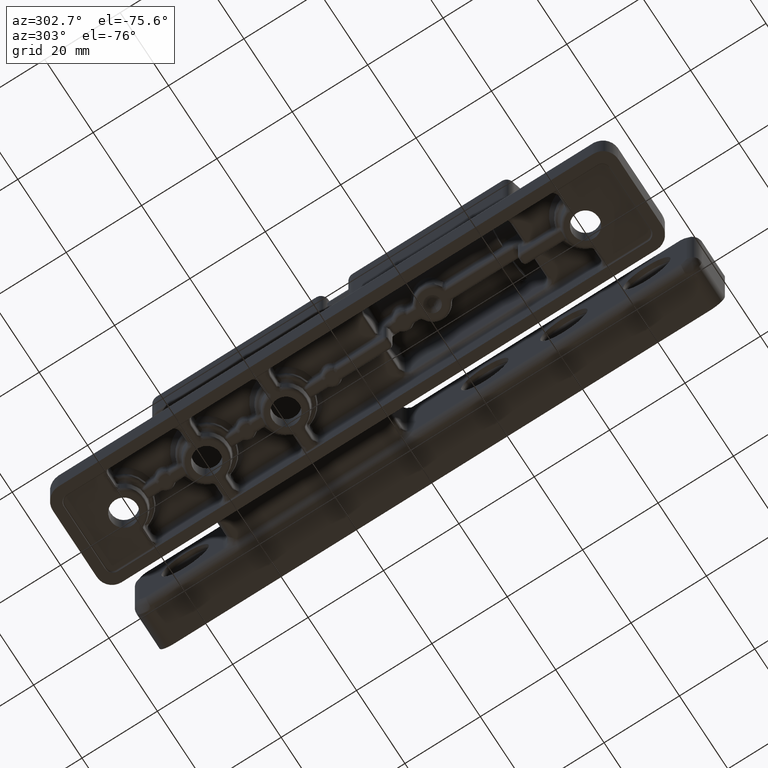
[diagram: clean part render]
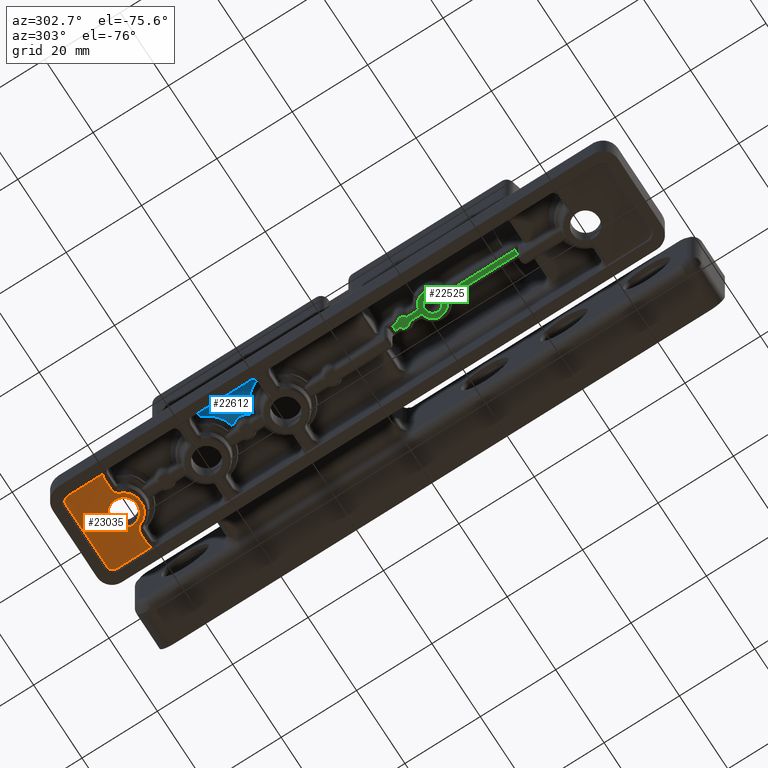
[diagram: same view with three faces highlighted in distinct colors, each labeled with its STEP entity id]
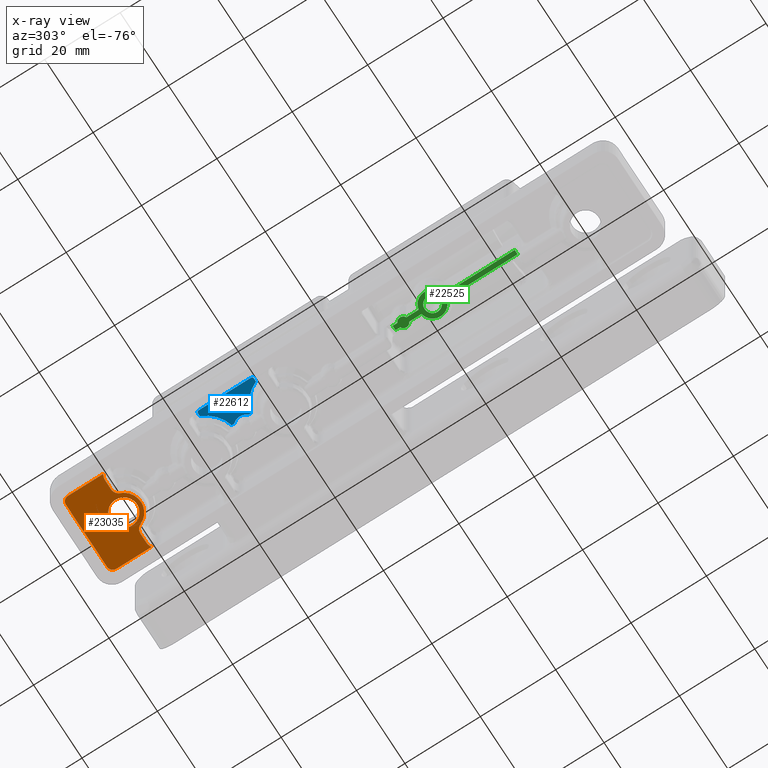
[diagram: x-ray of the same camera — body ghosted, the three highlighted faces saturated]
A machine part, auxiliary view with three faces highlighted in distinct colors.
The next image is the same camera in x-ray (body ghosted, the three faces saturated) — at least one of them is partly hidden behind the body in this view.
Their STEP definitions:

[orange] entity #23035 — the highlighted planar face has unit normal (0, 0, -1).
#1361=FACE_BOUND('',#6015,.T.);
#1802=B_SPLINE_CURVE_WITH_KNOTS('',3,(#57637,#57638,#57639,#57640,#57641,
#57642,#57643,#57644,#57645,#57646),.UNSPECIFIED.,.F.,.F.,(4,2,2,2,4),(0.,
0.79211936181165,1.56023510659871,2.04030744709062,2.34035265989806),
 .UNSPECIFIED.);
#1803=B_SPLINE_CURVE_WITH_KNOTS('',3,(#57713,#57714,#57715,#57716,#57717,
#57718,#57719,#57720,#57721,#57722),.UNSPECIFIED.,.F.,.F.,(4,2,2,2,4),(0.,
0.300045212807465,0.780117553299369,1.54823329808642,2.34035265989806),
 .UNSPECIFIED.);
#2303=CIRCLE('',#23864,3.5);
#2831=CIRCLE('',#24860,4.56392491007948);
#2850=CIRCLE('',#24894,1.495);
#2851=CIRCLE('',#24895,1.495);
#3769=ELLIPSE('',#24867,3.00022846596486,3.);
#3770=ELLIPSE('',#24892,3.00022846596486,3.);
#4525=FACE_OUTER_BOUND('',#6014,.T.);
#6014=EDGE_LOOP('',(#17004,#17005,#17006,#17007,#17008,#17009,#17010,#17011,
#17012,#17013,#17014,#17015));
#6015=EDGE_LOOP('',(#17016));
#7288=LINE('',#57649,#8186);
#7289=LINE('',#57726,#8187);
#7304=LINE('',#58794,#8202);
#7305=LINE('',#58798,#8203);
#7306=LINE('',#58801,#8204);
#8186=VECTOR('',#28754,2.42280124827818);
#8187=VECTOR('',#28763,2.42280124827715);
#8202=VECTOR('',#28832,9.3209556127788);
#8203=VECTOR('',#28835,17.);
#8204=VECTOR('',#28838,9.320955612779);
#8683=VERTEX_POINT('',#32168);
#9536=VERTEX_POINT('',#57570);
#9537=VERTEX_POINT('',#57572);
#9538=VERTEX_POINT('',#57635);
#9539=VERTEX_POINT('',#57648);
#9540=VERTEX_POINT('',#57711);
#9541=VERTEX_POINT('',#57724);
#9542=VERTEX_POINT('',#57835);
#9564=VERTEX_POINT('',#58772);
#9565=VERTEX_POINT('',#58793);
#9566=VERTEX_POINT('',#58795);
#9567=VERTEX_POINT('',#58797);
#9568=VERTEX_POINT('',#58799);
#10654=EDGE_CURVE('',#8683,#8683,#2303,.T.);
#12110=EDGE_CURVE('',#9537,#9536,#2831,.T.);
#12112=EDGE_CURVE('',#9536,#9538,#1802,.T.);
#12113=EDGE_CURVE('',#9538,#9539,#7288,.T.);
#12116=EDGE_CURVE('',#9540,#9537,#1803,.T.);
#12118=EDGE_CURVE('',#9541,#9540,#7289,.T.);
#12120=EDGE_CURVE('',#9542,#9541,#3769,.T.);
#12162=EDGE_CURVE('',#9539,#9564,#3770,.T.);
#12163=EDGE_CURVE('',#9565,#9542,#7304,.T.);
#12164=EDGE_CURVE('',#9566,#9565,#2850,.T.);
#12165=EDGE_CURVE('',#9567,#9566,#7305,.T.);
#12166=EDGE_CURVE('',#9568,#9567,#2851,.T.);
#12167=EDGE_CURVE('',#9564,#9568,#7306,.T.);
#17004=ORIENTED_EDGE('',*,*,#12163,.F.);
#17005=ORIENTED_EDGE('',*,*,#12164,.F.);
#17006=ORIENTED_EDGE('',*,*,#12165,.F.);
#17007=ORIENTED_EDGE('',*,*,#12166,.F.);
#17008=ORIENTED_EDGE('',*,*,#12167,.F.);
#17009=ORIENTED_EDGE('',*,*,#12162,.F.);
#17010=ORIENTED_EDGE('',*,*,#12113,.F.);
#17011=ORIENTED_EDGE('',*,*,#12112,.F.);
#17012=ORIENTED_EDGE('',*,*,#12110,.F.);
#17013=ORIENTED_EDGE('',*,*,#12116,.F.);
#17014=ORIENTED_EDGE('',*,*,#12118,.F.);
#17015=ORIENTED_EDGE('',*,*,#12120,.F.);
#17016=ORIENTED_EDGE('',*,*,#10654,.T.);
#20839=PLANE('',#24893);
#23035=ADVANCED_FACE('',(#4525,#1361),#20839,.T.);
#23864=AXIS2_PLACEMENT_3D('',#32169,#26349,#26350);
#24860=AXIS2_PLACEMENT_3D('',#57574,#28748,#28749);
#24867=AXIS2_PLACEMENT_3D('',#57854,#28764,#28765);
#24892=AXIS2_PLACEMENT_3D('',#58791,#28828,#28829);
#24893=AXIS2_PLACEMENT_3D('',#58792,#28830,#28831);
#24894=AXIS2_PLACEMENT_3D('',#58796,#28833,#28834);
#24895=AXIS2_PLACEMENT_3D('',#58800,#28836,#28837);
#26349=DIRECTION('center_axis',(0.,0.,1.));
#26350=DIRECTION('ref_axis',(1.,0.,0.));
#28748=DIRECTION('center_axis',(0.,0.,1.));
#28749=DIRECTION('ref_axis',(-1.34028280752567E-15,-1.,0.));
#28754=DIRECTION('',(1.,-6.12323399573676E-17,0.));
#28763=DIRECTION('',(1.,-6.12323399573676E-17,0.));
#28764=DIRECTION('center_axis',(0.,0.,-1.));
#28765=DIRECTION('ref_axis',(-0.707106781186548,0.707106781186548,0.));
#28828=DIRECTION('center_axis',(0.,0.,-1.));
#28829=DIRECTION('ref_axis',(0.707106781186548,0.707106781186548,0.));
#28830=DIRECTION('center_axis',(0.,0.,-1.));
#28831=DIRECTION('ref_axis',(0.,-1.,0.));
#28832=DIRECTION('',(-6.12323399573676E-17,-1.,0.));
#28833=DIRECTION('center_axis',(0.,0.,1.));
#28834=DIRECTION('ref_axis',(-0.707106781186548,0.707106781186548,0.));
#28835=DIRECTION('',(-1.,6.12323399573676E-17,0.));
#28836=DIRECTION('center_axis',(0.,0.,1.));
#28837=DIRECTION('ref_axis',(0.707106781186548,0.707106781186547,0.));
#28838=DIRECTION('',(6.12323399573676E-17,1.,0.));
#32168=CARTESIAN_POINT('',(234.6,62.,0.599999999999987));
#32169=CARTESIAN_POINT('Origin',(238.1,62.,0.599999999999987));
#57570=CARTESIAN_POINT('',(242.315948431205,60.2520899879391,0.599999999999994));
#57572=CARTESIAN_POINT('',(233.884051568794,60.2520899879391,0.599999999999994));
#57574=CARTESIAN_POINT('Origin',(238.1,62.,0.599999999999994));
#57635=CARTESIAN_POINT('',(244.163388073122,61.4860750899205,0.599999999999994));
#57637=CARTESIAN_POINT('Ctrl Pts',(242.315948431205,60.2520899879391,0.599999999999994));
#57638=CARTESIAN_POINT('Ctrl Pts',(242.417071433192,60.4959980602346,0.599999999999994));
#57639=CARTESIAN_POINT('Ctrl Pts',(242.570334154717,60.7237299860432,0.599999999999994));
#57640=CARTESIAN_POINT('Ctrl Pts',(242.940415996492,61.0891504072892,0.599999999999994));
#57641=CARTESIAN_POINT('Ctrl Pts',(243.161727696203,61.2360022916491,0.599999999999994));
#57642=CARTESIAN_POINT('Ctrl Pts',(243.546258221833,61.3952024317788,0.599999999999994));
#57643=CARTESIAN_POINT('Ctrl Pts',(243.703202232264,61.4390991955218,0.599999999999994));
#57644=CARTESIAN_POINT('Ctrl Pts',(243.962631987093,61.4785316297445,0.599999999999994));
#57645=CARTESIAN_POINT('Ctrl Pts',(244.063373002186,61.4860750899205,0.599999999999994));
#57646=CARTESIAN_POINT('Ctrl Pts',(244.163388073122,61.4860750899205,0.599999999999994));
#57648=CARTESIAN_POINT('',(246.5861893214,61.4860750899205,0.599999999999989));
#57649=CARTESIAN_POINT('',(240.775,61.4860750899205,0.599999999999994));
#57711=CARTESIAN_POINT('',(232.036611926877,61.4860750899205,0.599999999999994));
#57713=CARTESIAN_POINT('Ctrl Pts',(232.036611926877,61.4860750899205,0.599999999999994));
#57714=CARTESIAN_POINT('Ctrl Pts',(232.136626997813,61.4860750899205,0.599999999999994));
#57715=CARTESIAN_POINT('Ctrl Pts',(232.237368012906,61.4785316297444,0.599999999999994));
#57716=CARTESIAN_POINT('Ctrl Pts',(232.496797767735,61.4390991955218,0.599999999999994));
#57717=CARTESIAN_POINT('Ctrl Pts',(232.653741778166,61.3952024317788,0.599999999999994));
#57718=CARTESIAN_POINT('Ctrl Pts',(233.038272303796,61.2360022916491,0.599999999999994));
#57719=CARTESIAN_POINT('Ctrl Pts',(233.259584003507,61.0891504072892,0.599999999999994));
#57720=CARTESIAN_POINT('Ctrl Pts',(233.629665845282,60.7237299860432,0.599999999999994));
#57721=CARTESIAN_POINT('Ctrl Pts',(233.782928566807,60.4959980602346,0.599999999999994));
#57722=CARTESIAN_POINT('Ctrl Pts',(233.884051568794,60.2520899879391,0.599999999999994));
#57724=CARTESIAN_POINT('',(229.6138106786,61.4860750899205,0.599999999999993));
#57726=CARTESIAN_POINT('',(236.3375,61.4860750899205,0.599999999999994));
#57835=CARTESIAN_POINT('',(228.104999999914,61.0790443872212,0.599999999999998));
#57854=CARTESIAN_POINT('Origin',(229.614039145236,58.4859608547633,0.599999999999994));
#58772=CARTESIAN_POINT('',(248.095000000086,61.079044387221,0.599999999999994));
#58791=CARTESIAN_POINT('Origin',(246.585960854763,58.4859608547633,0.599999999999994));
#58792=CARTESIAN_POINT('Origin',(238.1,-2.33295215237568E-15,0.599999999999994));
#58793=CARTESIAN_POINT('',(228.105,70.4,0.599999999999994));
#58794=CARTESIAN_POINT('',(228.105,-1.72093491450179E-15,0.599999999999994));
#58795=CARTESIAN_POINT('',(229.6,71.895,0.599999999999994));
#58796=CARTESIAN_POINT('Origin',(229.6,70.4,0.599999999999994));
#58797=CARTESIAN_POINT('',(246.6,71.895,0.599999999999994));
#58798=CARTESIAN_POINT('',(238.1,71.895,0.599999999999994));
#58799=CARTESIAN_POINT('',(248.095,70.4,0.599999999999994));
#58800=CARTESIAN_POINT('Origin',(246.6,70.4,0.599999999999994));
#58801=CARTESIAN_POINT('',(248.095,-2.94496939024957E-15,0.599999999999994));

[blue] entity #22612 — the highlighted planar face has unit normal (0, 0, 1).
#2526=CIRCLE('',#24280,8.17673604267341);
#2528=CIRCLE('',#24283,8.17673604267341);
#2529=CIRCLE('',#24285,2.78230845001868);
#3699=ELLIPSE('',#24284,0.52591514481114,0.512350327419604);
#3700=ELLIPSE('',#24286,0.525915147503215,0.512350328684743);
#3701=ELLIPSE('',#24287,0.50003807766081,0.5);
#3702=ELLIPSE('',#24288,0.50003807766081,0.5);
#4102=FACE_OUTER_BOUND('',#5588,.T.);
#5588=EDGE_LOOP('',(#15010,#15011,#15012,#15013,#15014,#15015,#15016,#15017,
#15018,#15019,#15020,#15021));
#7049=LINE('',#39203,#7947);
#7050=LINE('',#39207,#7948);
#7051=LINE('',#39214,#7949);
#7052=LINE('',#39216,#7950);
#7053=LINE('',#39220,#7951);
#7947=VECTOR('',#27355,0.852084704049965);
#7948=VECTOR('',#27358,0.4915676399043);
#7949=VECTOR('',#27365,0.4915676399043);
#7950=VECTOR('',#27366,0.852084704049966);
#7951=VECTOR('',#27369,13.8620393306846);
#9059=VERTEX_POINT('',#39171);
#9060=VERTEX_POINT('',#39180);
#9062=VERTEX_POINT('',#39201);
#9063=VERTEX_POINT('',#39202);
#9064=VERTEX_POINT('',#39204);
#9065=VERTEX_POINT('',#39206);
#9066=VERTEX_POINT('',#39208);
#9067=VERTEX_POINT('',#39210);
#9068=VERTEX_POINT('',#39212);
#9069=VERTEX_POINT('',#39215);
#9070=VERTEX_POINT('',#39217);
#9071=VERTEX_POINT('',#39219);
#11226=EDGE_CURVE('',#9060,#9059,#2526,.T.);
#11230=EDGE_CURVE('',#9062,#9063,#7049,.T.);
#11231=EDGE_CURVE('',#9062,#9064,#2528,.T.);
#11232=EDGE_CURVE('',#9065,#9064,#7050,.T.);
#11233=EDGE_CURVE('',#9066,#9065,#3699,.T.);
#11234=EDGE_CURVE('',#9067,#9066,#2529,.T.);
#11235=EDGE_CURVE('',#9068,#9067,#3700,.T.);
#11236=EDGE_CURVE('',#9060,#9068,#7051,.T.);
#11237=EDGE_CURVE('',#9069,#9059,#7052,.T.);
#11238=EDGE_CURVE('',#9070,#9069,#3701,.T.);
#11239=EDGE_CURVE('',#9071,#9070,#7053,.T.);
#11240=EDGE_CURVE('',#9063,#9071,#3702,.T.);
#15010=ORIENTED_EDGE('',*,*,#11230,.F.);
#15011=ORIENTED_EDGE('',*,*,#11231,.T.);
#15012=ORIENTED_EDGE('',*,*,#11232,.F.);
#15013=ORIENTED_EDGE('',*,*,#11233,.F.);
#15014=ORIENTED_EDGE('',*,*,#11234,.F.);
#15015=ORIENTED_EDGE('',*,*,#11235,.F.);
#15016=ORIENTED_EDGE('',*,*,#11236,.F.);
#15017=ORIENTED_EDGE('',*,*,#11226,.T.);
#15018=ORIENTED_EDGE('',*,*,#11237,.F.);
#15019=ORIENTED_EDGE('',*,*,#11238,.F.);
#15020=ORIENTED_EDGE('',*,*,#11239,.F.);
#15021=ORIENTED_EDGE('',*,*,#11240,.F.);
#20792=PLANE('',#24282);
#22612=ADVANCED_FACE('',(#4102),#20792,.F.);
#24280=AXIS2_PLACEMENT_3D('',#39181,#27349,#27350);
#24282=AXIS2_PLACEMENT_3D('',#39200,#27353,#27354);
#24283=AXIS2_PLACEMENT_3D('',#39205,#27356,#27357);
#24284=AXIS2_PLACEMENT_3D('',#39209,#27359,#27360);
#24285=AXIS2_PLACEMENT_3D('',#39211,#27361,#27362);
#24286=AXIS2_PLACEMENT_3D('',#39213,#27363,#27364);
#24287=AXIS2_PLACEMENT_3D('',#39218,#27367,#27368);
#24288=AXIS2_PLACEMENT_3D('',#39221,#27370,#27371);
#27349=DIRECTION('center_axis',(0.,0.,1.));
#27350=DIRECTION('ref_axis',(-6.12323399573676E-17,-1.,0.));
#27353=DIRECTION('center_axis',(0.,0.,1.));
#27354=DIRECTION('ref_axis',(-1.,6.12323399573676E-17,0.));
#27355=DIRECTION('',(-1.,6.12323399573676E-17,0.));
#27356=DIRECTION('center_axis',(0.,0.,1.));
#27357=DIRECTION('ref_axis',(-6.12323399573676E-17,-1.,0.));
#27358=DIRECTION('',(6.12323399573676E-17,1.,0.));
#27359=DIRECTION('center_axis',(3.55004177950187E-14,-1.2749846752025E-14,
1.));
#27360=DIRECTION('ref_axis',(0.945780595605574,-0.324806196024592,-3.77168355098412E-14));
#27361=DIRECTION('center_axis',(0.,0.,-1.));
#27362=DIRECTION('ref_axis',(-1.,-1.08144875180064E-14,0.));
#27363=DIRECTION('center_axis',(3.55004177938239E-14,1.27498467515959E-14,
1.));
#27364=DIRECTION('ref_axis',(0.936321481678643,0.351143963278753,-3.77168355084762E-14));
#27365=DIRECTION('',(6.12323399573676E-17,1.,0.));
#27366=DIRECTION('',(1.,-6.12323399573676E-17,0.));
#27367=DIRECTION('center_axis',(0.,0.,1.));
#27368=DIRECTION('ref_axis',(-0.707106781186546,-0.707106781186549,0.));
#27369=DIRECTION('',(-6.12323399573676E-17,-1.,0.));
#27370=DIRECTION('center_axis',(0.,0.,1.));
#27371=DIRECTION('ref_axis',(-0.707106781186548,0.707106781186548,0.));
#39171=CARTESIAN_POINT('',(230.521065037928,22.0689993731256,9.4));
#39180=CARTESIAN_POINT('',(236.067691549981,26.9201473897609,9.4));
#39181=CARTESIAN_POINT('Origin',(238.1,19.,9.4));
#39200=CARTESIAN_POINT('Origin',(238.1,-2.33295215237568E-15,9.4));
#39201=CARTESIAN_POINT('',(230.521065037928,36.9310006268744,9.4));
#39202=CARTESIAN_POINT('',(229.668980333878,36.9310006268744,9.4));
#39203=CARTESIAN_POINT('',(236.3375,36.9310006268744,9.4));
#39204=CARTESIAN_POINT('',(236.067691549981,32.0798526102391,9.4));
#39205=CARTESIAN_POINT('Origin',(238.1,40.,9.4));
#39206=CARTESIAN_POINT('',(236.067691549981,31.5882849703348,9.4));
#39207=CARTESIAN_POINT('',(236.067691549981,7.8987351347075,9.4));
#39208=CARTESIAN_POINT('',(235.953446377136,31.2701830004882,9.4));
#39209=CARTESIAN_POINT('Origin',(235.543190960019,31.5967152759244,9.40000000000002));
#39210=CARTESIAN_POINT('',(235.953446377136,27.7298169995118,9.4));
#39211=CARTESIAN_POINT('Origin',(238.1,29.5,9.4));
#39212=CARTESIAN_POINT('',(236.067691549981,27.4117150296652,9.4));
#39213=CARTESIAN_POINT('Origin',(235.543430071353,27.4026189393089,9.40000000000002));
#39214=CARTESIAN_POINT('',(236.067691549981,6.1898719292175,9.4));
#39215=CARTESIAN_POINT('',(229.668980333878,22.0689993731256,9.4));
#39216=CARTESIAN_POINT('',(238.1,22.0689993731256,9.4));
#39217=CARTESIAN_POINT('',(229.168999373125,22.5689803346577,9.4));
#39218=CARTESIAN_POINT('Origin',(229.669018412318,22.5690184123185,9.4));
#39219=CARTESIAN_POINT('',(229.168999373125,36.4310196653423,9.4));
#39220=CARTESIAN_POINT('',(229.168999373125,18.725,9.4));
#39221=CARTESIAN_POINT('Origin',(229.669018412318,36.4309815876815,9.4));

[green] entity #22525 — the highlighted planar face has unit normal (0, 0, 1).
#1357=FACE_BOUND('',#5501,.T.);
#2439=CIRCLE('',#24136,1.3481391842603);
#2440=CIRCLE('',#24137,3.3481391842603);
#2441=CIRCLE('',#24138,3.3481391842603);
#2442=CIRCLE('',#24139,1.3481391842603);
#2443=CIRCLE('',#24140,2.1);
#4015=FACE_OUTER_BOUND('',#5500,.T.);
#5500=EDGE_LOOP('',(#14606,#14607,#14608,#14609,#14610,#14611,#14612,#14613,
#14614,#14615,#14616,#14617));
#5501=EDGE_LOOP('',(#14618));
#6988=LINE('',#34991,#7886);
#6994=LINE('',#35217,#7892);
#7001=LINE('',#35299,#7899);
#7002=LINE('',#35303,#7900);
#7003=LINE('',#35307,#7901);
#7004=LINE('',#35310,#7902);
#7005=LINE('',#35314,#7903);
#7006=LINE('',#35316,#7904);
#7886=VECTOR('',#26952,18.9057223077841);
#7892=VECTOR('',#26986,1.24181591828676);
#7899=VECTOR('',#27011,1.196278368521);
#7900=VECTOR('',#27014,1.24181591828675);
#7901=VECTOR('',#27017,3.2475382256217);
#7902=VECTOR('',#27020,18.9057223077841);
#7903=VECTOR('',#27023,3.2475382256217);
#7904=VECTOR('',#27026,1.19627836852061);
#8900=VERTEX_POINT('',#34965);
#8901=VERTEX_POINT('',#34969);
#8914=VERTEX_POINT('',#35192);
#8916=VERTEX_POINT('',#35215);
#8922=VERTEX_POINT('',#35297);
#8923=VERTEX_POINT('',#35301);
#8924=VERTEX_POINT('',#35302);
#8925=VERTEX_POINT('',#35304);
#8926=VERTEX_POINT('',#35306);
#8927=VERTEX_POINT('',#35308);
#8928=VERTEX_POINT('',#35311);
#8929=VERTEX_POINT('',#35313);
#8930=VERTEX_POINT('',#35317);
#10968=EDGE_CURVE('',#8901,#8900,#6988,.T.);
#10989=EDGE_CURVE('',#8916,#8914,#6994,.T.);
#11001=EDGE_CURVE('',#8900,#8922,#7001,.T.);
#11002=EDGE_CURVE('',#8923,#8924,#7002,.T.);
#11003=EDGE_CURVE('',#8925,#8923,#2439,.T.);
#11004=EDGE_CURVE('',#8926,#8925,#7003,.T.);
#11005=EDGE_CURVE('',#8927,#8926,#2440,.T.);
#11006=EDGE_CURVE('',#8922,#8927,#7004,.T.);
#11007=EDGE_CURVE('',#8928,#8901,#2441,.T.);
#11008=EDGE_CURVE('',#8929,#8928,#7005,.T.);
#11009=EDGE_CURVE('',#8914,#8929,#2442,.T.);
#11010=EDGE_CURVE('',#8924,#8916,#7006,.T.);
#11011=EDGE_CURVE('',#8930,#8930,#2443,.T.);
#14606=ORIENTED_EDGE('',*,*,#11002,.F.);
#14607=ORIENTED_EDGE('',*,*,#11003,.F.);
#14608=ORIENTED_EDGE('',*,*,#11004,.F.);
#14609=ORIENTED_EDGE('',*,*,#11005,.F.);
#14610=ORIENTED_EDGE('',*,*,#11006,.F.);
#14611=ORIENTED_EDGE('',*,*,#11001,.F.);
#14612=ORIENTED_EDGE('',*,*,#10968,.F.);
#14613=ORIENTED_EDGE('',*,*,#11007,.F.);
#14614=ORIENTED_EDGE('',*,*,#11008,.F.);
#14615=ORIENTED_EDGE('',*,*,#11009,.F.);
#14616=ORIENTED_EDGE('',*,*,#10989,.F.);
#14617=ORIENTED_EDGE('',*,*,#11010,.F.);
#14618=ORIENTED_EDGE('',*,*,#11011,.T.);
#20785=PLANE('',#24135);
#22525=ADVANCED_FACE('',(#4015,#1357),#20785,.F.);
#24135=AXIS2_PLACEMENT_3D('',#35300,#27012,#27013);
#24136=AXIS2_PLACEMENT_3D('',#35305,#27015,#27016);
#24137=AXIS2_PLACEMENT_3D('',#35309,#27018,#27019);
#24138=AXIS2_PLACEMENT_3D('',#35312,#27021,#27022);
#24139=AXIS2_PLACEMENT_3D('',#35315,#27024,#27025);
#24140=AXIS2_PLACEMENT_3D('',#35318,#27027,#27028);
#26952=DIRECTION('',(-6.12323399573676E-17,-1.,0.));
#26986=DIRECTION('',(-6.12323399573676E-17,-1.,0.));
#27011=DIRECTION('',(1.,-6.12323399573676E-17,0.));
#27012=DIRECTION('center_axis',(0.,0.,1.));
#27013=DIRECTION('ref_axis',(-1.,0.,0.));
#27014=DIRECTION('',(6.12323399573676E-17,1.,0.));
#27015=DIRECTION('center_axis',(0.,0.,1.));
#27016=DIRECTION('ref_axis',(1.,6.98072855530712E-16,0.));
#27017=DIRECTION('',(6.12323399573676E-17,1.,0.));
#27018=DIRECTION('center_axis',(0.,0.,1.));
#27019=DIRECTION('ref_axis',(1.,-6.12323399573676E-17,0.));
#27020=DIRECTION('',(6.12323399573676E-17,1.,0.));
#27021=DIRECTION('center_axis',(0.,0.,1.));
#27022=DIRECTION('ref_axis',(-1.,3.52811750470618E-11,0.));
#27023=DIRECTION('',(-6.12323399573676E-17,-1.,0.));
#27024=DIRECTION('center_axis',(0.,0.,1.));
#27025=DIRECTION('ref_axis',(-1.,6.12323399573676E-17,0.));
#27026=DIRECTION('',(-1.,6.12323399573676E-17,0.));
#27027=DIRECTION('center_axis',(0.,0.,1.));
#27028=DIRECTION('ref_axis',(-1.,6.12323399573676E-17,0.));
#34965=CARTESIAN_POINT('',(237.501860815739,-42.1,15.45));
#34969=CARTESIAN_POINT('',(237.501860815739,-23.1942776922159,15.45));
#34991=CARTESIAN_POINT('',(237.501860815739,-23.003004128793,15.45));
#35192=CARTESIAN_POINT('',(237.501860815739,-10.9418159178377,15.45));
#35215=CARTESIAN_POINT('',(237.501860815739,-9.69999999955095,15.45));
#35217=CARTESIAN_POINT('',(237.501860815739,-23.003004128793,15.45));
#35297=CARTESIAN_POINT('',(238.69813918426,-42.1,15.45));
#35299=CARTESIAN_POINT('',(242.575,-42.1,15.45));
#35300=CARTESIAN_POINT('Origin',(244.55,-45.4,15.45));
#35301=CARTESIAN_POINT('',(238.69813918426,-10.9418159178377,15.45));
#35302=CARTESIAN_POINT('',(238.69813918426,-9.69999999955095,15.45));
#35303=CARTESIAN_POINT('',(238.69813918426,-21.9158974528818,15.45));
#35304=CARTESIAN_POINT('',(238.69813918426,-13.3581840821623,15.45));
#35305=CARTESIAN_POINT('Origin',(238.1,-12.15,15.45));
#35306=CARTESIAN_POINT('',(238.69813918426,-16.605722307784,15.45));
#35307=CARTESIAN_POINT('',(238.69813918426,-21.9158974528818,15.45));
#35308=CARTESIAN_POINT('',(238.69813918426,-23.1942776922159,15.45));
#35309=CARTESIAN_POINT('Origin',(238.1,-19.9,15.45));
#35310=CARTESIAN_POINT('',(238.69813918426,-21.9158974528818,15.45));
#35311=CARTESIAN_POINT('',(237.501860815739,-16.605722307784,15.45));
#35312=CARTESIAN_POINT('Origin',(238.1,-19.9,15.45));
#35313=CARTESIAN_POINT('',(237.501860815739,-13.3581840821623,15.45));
#35314=CARTESIAN_POINT('',(237.501860815739,-23.003004128793,15.45));
#35315=CARTESIAN_POINT('Origin',(238.1,-12.15,15.45));
#35316=CARTESIAN_POINT('',(242.575,-9.7,15.45));
#35317=CARTESIAN_POINT('',(240.2,-19.9,15.45));
#35318=CARTESIAN_POINT('Origin',(238.1,-19.9,15.45));